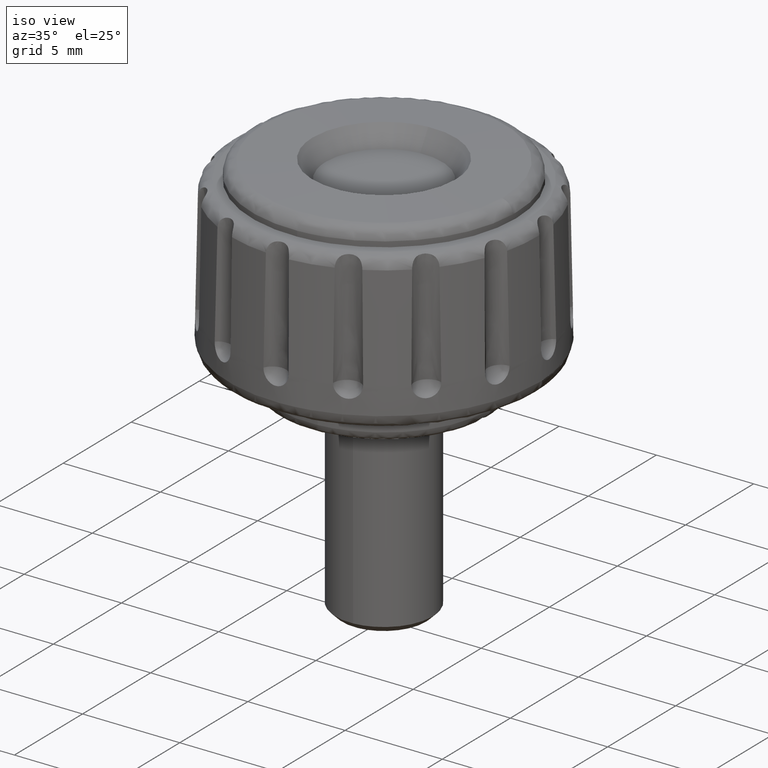
[diagram: clean part render]
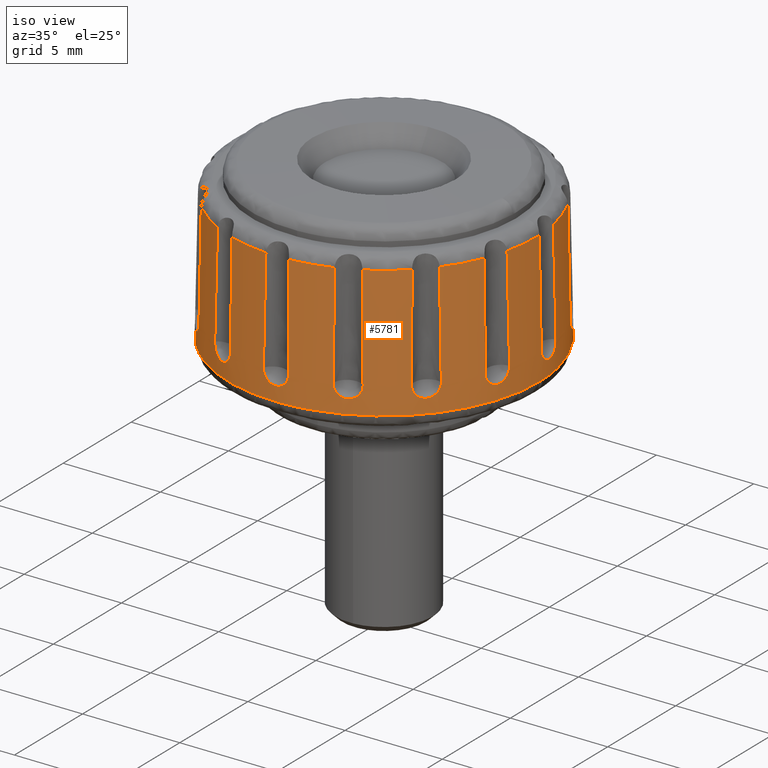
[diagram: same view with one face highlighted and labeled with its STEP entity id]
A machine part, iso view. The second image highlights one B-rep face of the part: STEP entity #5781.
In plain terms, the highlighted face is a freeform B-spline surface patch.
Its self-contained STEP definition (entity closure, byte-faithful):
#2534=CARTESIAN_POINT('',(5.949083221193707,5.326897424263119,2.714257020742696));
#2535=VERTEX_POINT('',#2534);
#2551=CARTESIAN_POINT('',(7.985450985185420,0.0,2.714256727239940));
#2552=VERTEX_POINT('',#2551);
#2553=CARTESIAN_POINT('',(5.949083221193707,5.326897424263119,2.714257020742696));
#2554=CARTESIAN_POINT('',(7.985450982958291,3.052680315324331,2.714256873991323));
#2555=CARTESIAN_POINT('',(7.985450985185420,0.0,2.714256727239940));
#2563=(BOUNDED_CURVE()B_SPLINE_CURVE(2,(#2553,#2554,#2555),.UNSPECIFIED.,.F.,.U.)B_SPLINE_CURVE_WITH_KNOTS((3,3),(0.383319386218338,0.500000000000000),.UNSPECIFIED.)CURVE()GEOMETRIC_REPRESENTATION_ITEM()RATIONAL_B_SPLINE_CURVE((0.854202087561151,0.863300157825439,1.0))REPRESENTATION_ITEM(''));
#2564=EDGE_CURVE('',#2535,#2552,#2563,.T.);
#2566=CARTESIAN_POINT('',(0.200675145421764,-7.982929094186465,2.714256727239831));
#2567=VERTEX_POINT('',#2566);
#2568=CARTESIAN_POINT('',(7.985450985185420,0.0,2.714256727239940));
#2569=CARTESIAN_POINT('',(7.985450985185419,-7.787235132071972,2.714256727239885));
#2570=CARTESIAN_POINT('',(0.200675145421763,-7.982929094186465,2.714256727239831));
#2578=(BOUNDED_CURVE()B_SPLINE_CURVE(2,(#2568,#2569,#2570),.UNSPECIFIED.,.F.,.U.)B_SPLINE_CURVE_WITH_KNOTS((3,3),(0.500000000000000,0.745579891769677),.UNSPECIFIED.)CURVE()GEOMETRIC_REPRESENTATION_ITEM()RATIONAL_B_SPLINE_CURVE((1.0,0.712285260094880,0.989826157681281))REPRESENTATION_ITEM(''));
#2579=EDGE_CURVE('',#2552,#2567,#2578,.T.);
#2626=CARTESIAN_POINT('',(-5.949083220944342,-5.326897424541610,2.714257020742678));
#2627=VERTEX_POINT('',#2626);
#2628=CARTESIAN_POINT('',(0.200675145421763,-7.982929094186465,2.714256727239831));
#2629=CARTESIAN_POINT('',(0.100353419114055,-7.985450985131180,2.714256731231269));
#2630=CARTESIAN_POINT('',(1.218334E-010,-7.985450985076326,2.714256735267792));
#2631=CARTESIAN_POINT('',(-3.568574904758616,-7.985450983125774,2.714256878806846));
#2632=CARTESIAN_POINT('',(-5.949083220944342,-5.326897424541610,2.714257020742678));
#2640=(BOUNDED_CURVE()B_SPLINE_CURVE(2,(#2628,#2629,#2630,#2631,#2632),.UNSPECIFIED.,.F.,.U.)B_SPLINE_CURVE_WITH_KNOTS((3,2,3),(0.745579891769677,0.750000000000000,0.883319386211269),.UNSPECIFIED.)CURVE()GEOMETRIC_REPRESENTATION_ITEM()RATIONAL_B_SPLINE_CURVE((0.989826157681281,0.994821521091667,1.0,0.843806623369390,0.854202087560048))REPRESENTATION_ITEM(''));
#2641=EDGE_CURVE('',#2567,#2627,#2640,.T.);
#2699=CARTESIAN_POINT('',(2.635446826464195,-7.508115825209311,4.099997999999999));
#2700=VERTEX_POINT('',#2699);
#2701=CARTESIAN_POINT('',(3.816159291570730,-6.982428766642530,4.099998000000050));
#2702=VERTEX_POINT('',#2701);
#2703=CARTESIAN_POINT('',(2.635446826464195,-7.508115825209311,4.099997999999999));
#2704=CARTESIAN_POINT('',(2.635469204785372,-7.509034536623016,4.057080522890732));
#2705=CARTESIAN_POINT('',(2.639371661005294,-7.508585397441424,4.014590445424951));
#2706=CARTESIAN_POINT('',(2.654873826394613,-7.504936122108291,3.930458736214820));
#2707=CARTESIAN_POINT('',(2.666644107312111,-7.501679841034684,3.888587035964628));
#2708=CARTESIAN_POINT('',(2.697055982479380,-7.492517876056769,3.809228933658157));
#2709=CARTESIAN_POINT('',(2.715729833691527,-7.486611176489309,3.771302731087238));
#2710=CARTESIAN_POINT('',(2.749045614769189,-7.475590768231121,3.717113543658334));
#2711=CARTESIAN_POINT('',(2.761070095152163,-7.471543560320813,3.699487256844192));
#2712=CARTESIAN_POINT('',(2.786374755852450,-7.462873231734655,3.665932262034256));
#2713=CARTESIAN_POINT('',(2.799713510803542,-7.458231094141110,3.649899435294611));
#2714=CARTESIAN_POINT('',(2.841748066763638,-7.443361747456553,3.604003944824571));
#2715=CARTESIAN_POINT('',(2.872600347071503,-7.432142351161842,3.576206609757151));
#2716=CARTESIAN_POINT('',(2.939230350303105,-7.407116713903426,3.527290884882228));
#2717=CARTESIAN_POINT('',(2.974172250115673,-7.393625789797532,3.506736951675712));
#2718=CARTESIAN_POINT('',(3.028915085039217,-7.371843638561319,3.481607805134038));
#2719=CARTESIAN_POINT('',(3.047554066064440,-7.364323871120155,3.474188698001269));
#2720=CARTESIAN_POINT('',(3.085633503096290,-7.348734213679780,3.461325843405060));
#2721=CARTESIAN_POINT('',(3.105028406992881,-7.340681347689745,3.455912879122808));
#2722=CARTESIAN_POINT('',(3.163084432209924,-7.316229438180486,3.443011547246521));
#2723=CARTESIAN_POINT('',(3.202042254351257,-7.299364905331661,3.438674175342452));
#2724=CARTESIAN_POINT('',(3.260849373293772,-7.273191109709329,3.438593961547182));
#2725=CARTESIAN_POINT('',(3.280626945854864,-7.264267720372010,3.439663497825638));
#2726=CARTESIAN_POINT('',(3.319586081178909,-7.246450869364003,3.443964546882722));
#2727=CARTESIAN_POINT('',(3.338791633435571,-7.237548403816599,3.447180951200025));
#2728=CARTESIAN_POINT('',(3.395611905354189,-7.210868487681660,3.459946481469529));
#2729=CARTESIAN_POINT('',(3.432475790924834,-7.193096794549875,3.472599014986132));
#2730=CARTESIAN_POINT('',(3.503904984023584,-7.157807397484656,3.506398496996825));
#2731=CARTESIAN_POINT('',(3.537339067406135,-7.140851212765496,3.526999270254298));
#2732=CARTESIAN_POINT('',(3.584277691715113,-7.116515344856514,3.563206672758573));
#2733=CARTESIAN_POINT('',(3.599384425981298,-7.108587957942536,3.576166963906943));
#2734=CARTESIAN_POINT('',(3.628506407134470,-7.093132361500451,3.603909145982819));
#2735=CARTESIAN_POINT('',(3.642499340500280,-7.085614884517738,3.618689995175958));
#2736=CARTESIAN_POINT('',(3.681943922812542,-7.064186969989910,3.664789073698628));
#2737=CARTESIAN_POINT('',(3.705216834929174,-7.051215666240050,3.698146026046824));
#2738=CARTESIAN_POINT('',(3.735693772453959,-7.033843284765025,3.752090017717633));
#2739=CARTESIAN_POINT('',(3.745153195034289,-7.028375804234963,3.770834476925930));
#2740=CARTESIAN_POINT('',(3.762271829458179,-7.018343300427782,3.809074247952706));
#2741=CARTESIAN_POINT('',(3.769937219581380,-7.013775858568995,3.828549823490135));
#2742=CARTESIAN_POINT('',(3.790340611160303,-7.001406711969032,3.888014083658847));
#2743=CARTESIAN_POINT('',(3.800511327996839,-6.994926759610383,3.929030414556355));
#2744=CARTESIAN_POINT('',(3.813835865622512,-6.985701203603237,4.013894598083278));
#2745=CARTESIAN_POINT('',(3.816830332266100,-6.983063235278364,4.056869773832961));
#2746=CARTESIAN_POINT('',(3.816159291570730,-6.982428766642530,4.099998000000050));
#2747=B_SPLINE_CURVE_WITH_KNOTS('',3,(#2703,#2704,#2705,#2706,#2707,#2708,#2709,#2710,#2711,#2712,#2713,#2714,#2715,#2716,#2717,#2718,#2719,#2720,#2721,#2722,#2723,#2724,#2725,#2726,#2727,#2728,#2729,#2730,#2731,#2732,#2733,#2734,#2735,#2736,#2737,#2738,#2739,#2740,#2741,#2742,#2743,#2744,#2745,#2746),.UNSPECIFIED.,.F.,.U.,(4,2,2,2,2,2,2,2,2,2,2,2,2,2,2,2,2,2,2,2,2,4),(0.0,0.062500000000002,0.125000000000004,0.187500000000005,0.218750000000006,0.250000000000007,0.312500000000008,0.375000000000008,0.406250000000009,0.437500000000009,0.500000000000008,0.531250000000008,0.562500000000007,0.625000000000007,0.687500000000006,0.718750000000006,0.750000000000005,0.812500000000004,0.843750000000003,0.875000000000002,0.937500000000001,1.0),.UNSPECIFIED.);
#2748=EDGE_CURVE('',#2700,#2702,#2747,.T.);
#2793=CARTESIAN_POINT('',(5.461426303744900,-5.787072312373681,4.099997999999999));
#2794=VERTEX_POINT('',#2793);
#2795=CARTESIAN_POINT('',(6.326244623515130,-4.826594263383310,4.099998000000050));
#2796=VERTEX_POINT('',#2795);
#2797=CARTESIAN_POINT('',(5.461426303744902,-5.787072312373676,4.099997999999999));
#2798=CARTESIAN_POINT('',(5.461823363744259,-5.787908693714222,4.056760067608728));
#2799=CARTESIAN_POINT('',(5.465264615583961,-5.785861599666244,4.014052860863724));
#2800=CARTESIAN_POINT('',(5.474770864828233,-5.778628254379415,3.951159285791404));
#2801=CARTESIAN_POINT('',(5.478668852296179,-5.775518301707478,3.930367780921924));
#2802=CARTESIAN_POINT('',(5.487945960132745,-5.767863222465794,3.889137815710257));
#2803=CARTESIAN_POINT('',(5.493360226856130,-5.763287280986274,3.868599908351802));
#2804=CARTESIAN_POINT('',(5.511535589423874,-5.747615283142141,3.808713776341075));
#2805=CARTESIAN_POINT('',(5.526236706892994,-5.734578718620412,3.770821696859260));
#2806=CARTESIAN_POINT('',(5.560639420120734,-5.703267711183637,3.699054584695797));
#2807=CARTESIAN_POINT('',(5.580579323445515,-5.684763257813936,3.664925579920682));
#2808=CARTESIAN_POINT('',(5.623873924982521,-5.643699871642854,3.603593018152484));
#2809=CARTESIAN_POINT('',(5.647325680072528,-5.621060543949244,3.576057920839529));
#2810=CARTESIAN_POINT('',(5.685163215446878,-5.583765680710402,3.539551133938706));
#2811=CARTESIAN_POINT('',(5.698285127071436,-5.570710006554595,3.528148271183182));
#2812=CARTESIAN_POINT('',(5.724861286730623,-5.544000477866775,3.507467085898553));
#2813=CARTESIAN_POINT('',(5.738366899411908,-5.530297110997066,3.498128388170803));
#2814=CARTESIAN_POINT('',(5.779503449248843,-5.488139541924105,3.473063806174414));
#2815=CARTESIAN_POINT('',(5.807828333099916,-5.458560643230996,3.460234867853013));
#2816=CARTESIAN_POINT('',(5.865782163245106,-5.396756395953675,3.442910553467004));
#2817=CARTESIAN_POINT('',(5.894566405552390,-5.365434051160687,3.438643393171920));
#2818=CARTESIAN_POINT('',(5.937441464166183,-5.317821675629904,3.438608749139094));
#2819=CARTESIAN_POINT('',(5.951683036986340,-5.301845720995499,3.439666236128923));
#2820=CARTESIAN_POINT('',(5.980065060277786,-5.269679345964404,3.443978891230735));
#2821=CARTESIAN_POINT('',(5.994170494595632,-5.253526396888976,3.447243949883551));
#2822=CARTESIAN_POINT('',(6.035387341074036,-5.205849121927828,3.460110192109809));
#2823=CARTESIAN_POINT('',(6.061728254775853,-5.174736218630510,3.472790713112961));
#2824=CARTESIAN_POINT('',(6.099601056441950,-5.129129294350517,3.497960311967899));
#2825=CARTESIAN_POINT('',(6.112014505753459,-5.114026300320539,3.507444842507282));
#2826=CARTESIAN_POINT('',(6.135834846811392,-5.084760846939729,3.528155276953965));
#2827=CARTESIAN_POINT('',(6.147271397515826,-5.070564512355937,3.539385875450693));
#2828=CARTESIAN_POINT('',(6.180223760019885,-5.029270983900132,3.575634646880532));
#2829=CARTESIAN_POINT('',(6.200424377422475,-5.003416796709526,3.603235231418193));
#2830=CARTESIAN_POINT('',(6.237139265549170,-4.955543379590445,3.665240704626206));
#2831=CARTESIAN_POINT('',(6.253114982620189,-4.934231220740745,3.698711787646405));
#2832=CARTESIAN_POINT('',(6.273777343364544,-4.906114122799825,3.752459583466863));
#2833=CARTESIAN_POINT('',(6.280110138465395,-4.897388221899288,3.770970159004613));
#2834=CARTESIAN_POINT('',(6.291660167296292,-4.881270466562141,3.809206307257374));
#2835=CARTESIAN_POINT('',(6.296869644065130,-4.873888000845538,3.828941903851455));
#2836=CARTESIAN_POINT('',(6.310510196471549,-4.854237235953484,3.888695731653190));
#2837=CARTESIAN_POINT('',(6.317108993020401,-4.844255566485788,3.929669794755842));
#2838=CARTESIAN_POINT('',(6.325438810372567,-4.830547878463682,4.013879288442274));
#2839=CARTESIAN_POINT('',(6.327107416336532,-4.826898022108449,4.057280465685442));
#2840=CARTESIAN_POINT('',(6.326244623515128,-4.826594263383304,4.099998000000050));
#2841=B_SPLINE_CURVE_WITH_KNOTS('',3,(#2797,#2798,#2799,#2800,#2801,#2802,#2803,#2804,#2805,#2806,#2807,#2808,#2809,#2810,#2811,#2812,#2813,#2814,#2815,#2816,#2817,#2818,#2819,#2820,#2821,#2822,#2823,#2824,#2825,#2826,#2827,#2828,#2829,#2830,#2831,#2832,#2833,#2834,#2835,#2836,#2837,#2838,#2839,#2840),.UNSPECIFIED.,.F.,.U.,(4,2,2,2,2,2,2,2,2,2,2,2,2,2,2,2,2,2,2,2,2,4),(0.0,0.062499999999999,0.093749999999998,0.124999999999998,0.187499999999998,0.249999999999997,0.312499999999997,0.343749999999997,0.374999999999996,0.437499999999996,0.499999999999995,0.531249999999996,0.562499999999996,0.624999999999996,0.656249999999996,0.687499999999997,0.749999999999997,0.812499999999997,0.843749999999997,0.874999999999997,0.937499999999999,1.0),.UNSPECIFIED.);
#2842=EDGE_CURVE('',#2794,#2796,#2841,.T.);
#2888=CARTESIAN_POINT('',(7.343075557607750,-3.065391422827160,4.099997999999999));
#2889=VERTEX_POINT('',#2888);
#2890=CARTESIAN_POINT('',(7.742464787925609,-1.836197763752780,4.099998000000050));
#2891=VERTEX_POINT('',#2890);
#2892=CARTESIAN_POINT('',(7.343075557607750,-3.065391422827160,4.099997999999999));
#2893=CARTESIAN_POINT('',(7.343774051064387,-3.065990202327985,4.057032309627476));
#2894=CARTESIAN_POINT('',(7.346055340983755,-3.062781361061254,4.014524822014907));
#2895=CARTESIAN_POINT('',(7.353717074019839,-3.048816228277404,3.930415743569673));
#2896=CARTESIAN_POINT('',(7.359176199790496,-3.037883881095121,3.888522311941655));
#2897=CARTESIAN_POINT('',(7.372732062706935,-3.009119024504927,3.809106601493990));
#2898=CARTESIAN_POINT('',(7.380842858577990,-2.991276240807404,3.771180473842873));
#2899=CARTESIAN_POINT('',(7.394941767481811,-2.959150885335359,3.717025275432395));
#2900=CARTESIAN_POINT('',(7.399984968025009,-2.947495044933790,3.699386002914117));
#2901=CARTESIAN_POINT('',(7.410486788264436,-2.922856328567785,3.665803037687547));
#2902=CARTESIAN_POINT('',(7.415967610153755,-2.909824004588751,3.649763160490152));
#2903=CARTESIAN_POINT('',(7.433054767689823,-2.868607677252571,3.603862903808624));
#2904=CARTESIAN_POINT('',(7.445338495493496,-2.838227803079426,3.576126831644287));
#2905=CARTESIAN_POINT('',(7.471362116132968,-2.771866737671470,3.527166999261228));
#2906=CARTESIAN_POINT('',(7.484727728864818,-2.736840019674786,3.506617238533497));
#2907=CARTESIAN_POINT('',(7.505172973230541,-2.681569582088537,3.481511159926132));
#2908=CARTESIAN_POINT('',(7.512055167049487,-2.662687852555735,3.474102621909410));
#2909=CARTESIAN_POINT('',(7.525942155206211,-2.623974717295993,3.461263134142078));
#2910=CARTESIAN_POINT('',(7.532945513889982,-2.604142348897462,3.455849591268595));
#2911=CARTESIAN_POINT('',(7.553639227048391,-2.544576466609831,3.442964966242017));
#2912=CARTESIAN_POINT('',(7.567176678769073,-2.504325419405419,3.438651938201660));
#2913=CARTESIAN_POINT('',(7.587066064037875,-2.443127576163700,3.438604595794139));
#2914=CARTESIAN_POINT('',(7.593663509808111,-2.422471417767895,3.439683099518610));
#2915=CARTESIAN_POINT('',(7.606503114359536,-2.381553733557384,3.444011053208219));
#2916=CARTESIAN_POINT('',(7.612741497634643,-2.361309746488880,3.447242447161838));
#2917=CARTESIAN_POINT('',(7.630937906435066,-2.301208020665928,3.460051770827560));
#2918=CARTESIAN_POINT('',(7.642379911380481,-2.261973502800819,3.472713793449819));
#2919=CARTESIAN_POINT('',(7.663949674266013,-2.185263376835289,3.506573426459607));
#2920=CARTESIAN_POINT('',(7.673729278343791,-2.149029241335930,3.527230519390086));
#2921=CARTESIAN_POINT('',(7.687043815102586,-2.097881276098931,3.563479376338242));
#2922=CARTESIAN_POINT('',(7.691256809723397,-2.081361881671751,3.576449887126270));
#2923=CARTESIAN_POINT('',(7.699247066347929,-2.049410747134720,3.604202067674293));
#2924=CARTESIAN_POINT('',(7.703024606191809,-2.033973418065089,3.619009890796821));
#2925=CARTESIAN_POINT('',(7.713492075255106,-1.990316899268670,3.665181712947601));
#2926=CARTESIAN_POINT('',(7.719418127843456,-1.964362001182367,3.698572121404416));
#2927=CARTESIAN_POINT('',(7.726887081606958,-1.930137765455599,3.752531198797121));
#2928=CARTESIAN_POINT('',(7.729148019826396,-1.919470938520811,3.771269083224143));
#2929=CARTESIAN_POINT('',(7.733143165544623,-1.900044552951217,3.809565536247408));
#2930=CARTESIAN_POINT('',(7.734875039565798,-1.891301009380755,3.829064104371560));
#2931=CARTESIAN_POINT('',(7.739324640490350,-1.867899245347199,3.888580072039377));
#2932=CARTESIAN_POINT('',(7.741304911052178,-1.856043369733005,3.929608070943730));
#2933=CARTESIAN_POINT('',(7.743346307763678,-1.840047784808194,4.014439731408531));
#2934=CARTESIAN_POINT('',(7.743375652332767,-1.836124403047360,4.057321970198048));
#2935=CARTESIAN_POINT('',(7.742464787925610,-1.836197763752782,4.099998000000049));
#2936=B_SPLINE_CURVE_WITH_KNOTS('',3,(#2892,#2893,#2894,#2895,#2896,#2897,#2898,#2899,#2900,#2901,#2902,#2903,#2904,#2905,#2906,#2907,#2908,#2909,#2910,#2911,#2912,#2913,#2914,#2915,#2916,#2917,#2918,#2919,#2920,#2921,#2922,#2923,#2924,#2925,#2926,#2927,#2928,#2929,#2930,#2931,#2932,#2933,#2934,#2935),.UNSPECIFIED.,.F.,.U.,(4,2,2,2,2,2,2,2,2,2,2,2,2,2,2,2,2,2,2,2,2,4),(0.0,0.062500000000001,0.125000000000002,0.187500000000002,0.218750000000003,0.250000000000003,0.312500000000003,0.375000000000004,0.406250000000004,0.437500000000004,0.500000000000004,0.531250000000004,0.562500000000003,0.625000000000003,0.687500000000002,0.718750000000001,0.750000000000000,0.812500000000000,0.843749999999999,0.874999999999999,0.937500000000000,1.0),.UNSPECIFIED.);
#2937=EDGE_CURVE('',#2889,#2891,#2936,.T.);
#2982=CARTESIAN_POINT('',(7.955040337813040,0.186323491932995,4.099997999999999));
#2983=VERTEX_POINT('',#2982);
#2984=CARTESIAN_POINT('',(7.819942452419321,1.471694010563594,4.099998000000050));
#2985=VERTEX_POINT('',#2984);
#2986=CARTESIAN_POINT('',(7.955040337813040,0.186323491932995,4.099997999999999));
#2987=CARTESIAN_POINT('',(7.955480050225948,0.186192369157514,4.078569401331801));
#2988=CARTESIAN_POINT('',(7.955899953258136,0.187104843994215,4.056923299658730));
#2989=CARTESIAN_POINT('',(7.956681593833133,0.191018753253304,4.013999577523050));
#2990=CARTESIAN_POINT('',(7.957042514879217,0.194001530738230,3.992782755582650));
#2991=CARTESIAN_POINT('',(7.958027779769062,0.205945798087297,3.929847789153798));
#2992=CARTESIAN_POINT('',(7.958557982255042,0.217874510379923,3.888838320644232));
#2993=CARTESIAN_POINT('',(7.959075263125986,0.241913580123325,3.828790838573396));
#2994=CARTESIAN_POINT('',(7.959199165084889,0.250940268840453,3.809100469025049));
#2995=CARTESIAN_POINT('',(7.959328078604516,0.270667670394329,3.771060456931220));
#2996=CARTESIAN_POINT('',(7.959340048467523,0.292148380711916,3.734153859187824));
#2997=CARTESIAN_POINT('',(7.959077739255141,0.317098480330631,3.699490195521245));
#2998=CARTESIAN_POINT('',(7.958651902364016,0.343815129259130,3.665968688062106));
#2999=CARTESIAN_POINT('',(7.958354868230164,0.358142529802107,3.649694363842073));
#3000=CARTESIAN_POINT('',(7.957186542042050,0.403208888610852,3.603359484321911));
#3001=CARTESIAN_POINT('',(7.956048036417516,0.435844847412920,3.575852276115344));
#3002=CARTESIAN_POINT('',(7.952869413911278,0.506195652981368,3.527477204645511));
#3003=CARTESIAN_POINT('',(7.950796181929621,0.544373966156754,3.506461555158887));
#3004=CARTESIAN_POINT('',(7.945704008826757,0.623035834779222,3.472944682536673));
#3005=CARTESIAN_POINT('',(7.942688156974568,0.663652535730204,3.460232361136260));
#3006=CARTESIAN_POINT('',(7.937364976725857,0.726523818135247,3.447308338880144));
#3007=CARTESIAN_POINT('',(7.935445117892899,0.747924916267283,3.444026767271468));
#3008=CARTESIAN_POINT('',(7.931402342232448,0.790533830681538,3.439697283426093));
#3009=CARTESIAN_POINT('',(7.929275749257858,0.811799769915510,3.438624810834278));
#3010=CARTESIAN_POINT('',(7.922583636607716,0.875484208724596,3.438611034160187));
#3011=CARTESIAN_POINT('',(7.917693203568592,0.917894634232877,3.442862507973511));
#3012=CARTESIAN_POINT('',(7.907137973097854,1.001975279754621,3.460140926531135));
#3013=CARTESIAN_POINT('',(7.901630415598019,1.042416631538376,3.472893168233958));
#3014=CARTESIAN_POINT('',(7.893121547099399,1.100787830717950,3.497944605781129));
#3015=CARTESIAN_POINT('',(7.890244049163557,1.119860228078263,3.507289802106882));
#3016=CARTESIAN_POINT('',(7.884424571156543,1.157219563934851,3.528018608339012));
#3017=CARTESIAN_POINT('',(7.881491121646757,1.175444909399400,3.539383916800174));
#3018=CARTESIAN_POINT('',(7.872820994720348,1.227756154372080,3.575776126111389));
#3019=CARTESIAN_POINT('',(7.867150212100460,1.259904128584390,3.603291802800192));
#3020=CARTESIAN_POINT('',(7.858953210824688,1.304077218608965,3.649428704806261));
#3021=CARTESIAN_POINT('',(7.856259220619603,1.318189189838992,3.665718660679058));
#3022=CARTESIAN_POINT('',(7.851099225186173,1.344527234734024,3.699363751044427));
#3023=CARTESIAN_POINT('',(7.848627275899841,1.356789960203690,3.716738538611799));
#3024=CARTESIAN_POINT('',(7.841561615154934,1.390937904747692,3.770476110029368));
#3025=CARTESIAN_POINT('',(7.837315296226175,1.410208538910276,3.808436507660133));
#3026=CARTESIAN_POINT('',(7.829946293981126,1.441554119432126,3.888775020766468));
#3027=CARTESIAN_POINT('',(7.826943469644725,1.453124388095083,3.929863816206467));
#3028=CARTESIAN_POINT('',(7.823497853967528,1.464597988069235,3.992771119417184));
#3029=CARTESIAN_POINT('',(7.822526206175654,1.467435785709824,4.013956745750495));
#3030=CARTESIAN_POINT('',(7.820950782332352,1.471098504416069,4.056770112926203));
#3031=CARTESIAN_POINT('',(7.820347362157513,1.471914817089906,4.078459394121838));
#3032=CARTESIAN_POINT('',(7.819942452419321,1.471694010563594,4.099998000000050));
#3033=B_SPLINE_CURVE_WITH_KNOTS('',3,(#2986,#2987,#2988,#2989,#2990,#2991,#2992,#2993,#2994,#2995,#2996,#2997,#2998,#2999,#3000,#3001,#3002,#3003,#3004,#3005,#3006,#3007,#3008,#3009,#3010,#3011,#3012,#3013,#3014,#3015,#3016,#3017,#3018,#3019,#3020,#3021,#3022,#3023,#3024,#3025,#3026,#3027,#3028,#3029,#3030,#3031,#3032),.UNSPECIFIED.,.F.,.U.,(4,2,2,2,2,1,2,2,2,2,2,2,2,2,2,2,2,2,2,2,2,2,2,4),(0.0,0.031250000000001,0.062500000000002,0.125000000000003,0.156250000000003,0.187500000000003,0.218750000000003,0.250000000000003,0.312500000000003,0.375000000000003,0.437500000000003,0.468750000000003,0.500000000000002,0.562500000000002,0.625000000000001,0.656250000000001,0.687500000000000,0.749999999999999,0.781249999999999,0.812499999999999,0.874999999999999,0.937499999999999,0.968749999999999,1.0),.UNSPECIFIED.);
#3034=EDGE_CURVE('',#2983,#2985,#3033,.T.);
#3079=CARTESIAN_POINT('',(7.191506374337780,3.405821382242150,4.099997999999999));
#3080=VERTEX_POINT('',#3079);
#3081=CARTESIAN_POINT('',(6.545281024942820,4.525116520533169,4.099998000000050));
#3082=VERTEX_POINT('',#3081);
#3083=CARTESIAN_POINT('',(7.191506374337775,3.405821382242153,4.099997999999999));
#3084=CARTESIAN_POINT('',(7.192424518549398,3.405940552693893,4.056760067608729));
#3085=CARTESIAN_POINT('',(7.191541021715993,3.409845964530168,4.014052860863727));
#3086=CARTESIAN_POINT('',(7.187599294115587,3.421122171439269,3.951159285791404));
#3087=CARTESIAN_POINT('',(7.185846097733024,3.425790406048427,3.930367780921925));
#3088=CARTESIAN_POINT('',(7.181432468717614,3.436979009487732,3.889137815710258));
#3089=CARTESIAN_POINT('',(7.178753590184937,3.443542326818404,3.868599908351802));
#3090=CARTESIAN_POINT('',(7.169465130424271,3.465671037494130,3.808713776341075));
#3091=CARTESIAN_POINT('',(7.161609515920036,3.483681151045435,3.770821696859260));
#3092=CARTESIAN_POINT('',(7.142462001305504,3.526075709047877,3.699054584695795));
#3093=CARTESIAN_POINT('',(7.131024989341319,3.550757874602057,3.664925579920681));
#3094=CARTESIAN_POINT('',(7.105350155981799,3.604622771687679,3.603593018152484));
#3095=CARTESIAN_POINT('',(7.091065866724981,3.633922653183135,3.576057920839530));
#3096=CARTESIAN_POINT('',(7.067288785473279,3.681433034305151,3.539551133938707));
#3097=CARTESIAN_POINT('',(7.058926995183448,3.697947139049102,3.528148271183182));
#3098=CARTESIAN_POINT('',(7.041737208857636,3.731476267147354,3.507467085898554));
#3099=CARTESIAN_POINT('',(7.032877996338977,3.748555441337341,3.498128388170803));
#3100=CARTESIAN_POINT('',(7.005495658550541,3.800706030402740,3.473063806174416));
#3101=CARTESIAN_POINT('',(6.986117324677300,3.836784978133673,3.460234867853014));
#3102=CARTESIAN_POINT('',(6.945246710973472,3.911000908670760,3.442910553467006));
#3103=CARTESIAN_POINT('',(6.924352210895614,3.948055486728428,3.438643393171920));
#3104=CARTESIAN_POINT('',(6.892319272637254,4.003545123791184,3.438608749139092));
#3105=CARTESIAN_POINT('',(6.881526124906226,4.022026505907484,3.439666236128922));
#3106=CARTESIAN_POINT('',(6.859704611859110,4.058959370636500,3.443978891230734));
#3107=CARTESIAN_POINT('',(6.848701063300795,4.077365971633241,3.447243949883550));
#3108=CARTESIAN_POINT('',(6.816093986286170,4.131298610266144,3.460110192109808));
#3109=CARTESIAN_POINT('',(6.794643646845620,4.165964723750640,3.472790713112961));
#3110=CARTESIAN_POINT('',(6.762972223660368,4.216077213229226,3.497960311967900));
#3111=CARTESIAN_POINT('',(6.752444389568661,4.232550186907845,3.507444842507281));
#3112=CARTESIAN_POINT('',(6.731972179627216,4.264248199934118,3.528155276953966));
#3113=CARTESIAN_POINT('',(6.722004751638496,4.279511914649738,3.539385875450694));
#3114=CARTESIAN_POINT('',(6.692915112338344,4.323611875787097,3.575634646880534));
#3115=CARTESIAN_POINT('',(6.674568653211470,4.350813187818659,3.603235231418193));
#3116=CARTESIAN_POINT('',(6.640383852280774,4.400524820885200,3.665240704626206));
#3117=CARTESIAN_POINT('',(6.625051552802720,4.422304449979456,3.698711787646404));
#3118=CARTESIAN_POINT('',(6.604695624200612,4.450644183903664,3.752459583466862));
#3119=CARTESIAN_POINT('',(6.598353740596666,4.459363481620187,3.770970159004611));
#3120=CARTESIAN_POINT('',(6.586593999549490,4.475328872113567,3.809206307257373));
#3121=CARTESIAN_POINT('',(6.581182674276762,4.482564686307881,3.828941903851454));
#3122=CARTESIAN_POINT('',(6.566708848782234,4.501610042863979,3.888695731653190));
#3123=CARTESIAN_POINT('',(6.559254857267494,4.510970376819222,3.929669794755842));
#3124=CARTESIAN_POINT('',(6.548792126372590,4.523128412443970,4.013879288442270));
#3125=CARTESIAN_POINT('',(6.545836534302183,4.525843218659922,4.057280465685443));
#3126=CARTESIAN_POINT('',(6.545281024942814,4.525116520533171,4.099998000000051));
#3127=B_SPLINE_CURVE_WITH_KNOTS('',3,(#3083,#3084,#3085,#3086,#3087,#3088,#3089,#3090,#3091,#3092,#3093,#3094,#3095,#3096,#3097,#3098,#3099,#3100,#3101,#3102,#3103,#3104,#3105,#3106,#3107,#3108,#3109,#3110,#3111,#3112,#3113,#3114,#3115,#3116,#3117,#3118,#3119,#3120,#3121,#3122,#3123,#3124,#3125,#3126),.UNSPECIFIED.,.F.,.U.,(4,2,2,2,2,2,2,2,2,2,2,2,2,2,2,2,2,2,2,2,2,4),(0.0,0.062500000000001,0.093750000000001,0.125000000000000,0.187499999999999,0.249999999999999,0.312499999999998,0.343749999999997,0.374999999999997,0.437499999999994,0.499999999999992,0.531249999999992,0.562499999999991,0.624999999999991,0.656249999999992,0.687499999999992,0.749999999999994,0.812499999999996,0.843749999999997,0.874999999999997,0.937499999999999,1.0),.UNSPECIFIED.);
#3128=EDGE_CURVE('',#3080,#3082,#3127,.T.);
#3838=CARTESIAN_POINT('',(-5.938084165350783,-5.317049239392807,3.438997407666107));
#3839=VERTEX_POINT('',#3838);
#3865=CARTESIAN_POINT('',(-5.461426303744900,-5.787072312373681,4.099998000000050));
#3866=VERTEX_POINT('',#3865);
#3867=CARTESIAN_POINT('',(-5.938084165350783,-5.317049239392807,3.438997407666107));
#3868=CARTESIAN_POINT('',(-5.933272548608528,-5.322430421435111,3.438749665437532));
#3869=CARTESIAN_POINT('',(-5.928448388610048,-5.327807177125509,3.438624205782450));
#3870=CARTESIAN_POINT('',(-5.909321723950349,-5.349051810789461,3.438608749133153));
#3871=CARTESIAN_POINT('',(-5.894921936990504,-5.364885308772618,3.439666236123085));
#3872=CARTESIAN_POINT('',(-5.865898502010899,-5.396474154125615,3.443978891225116));
#3873=CARTESIAN_POINT('',(-5.851308459855868,-5.412190760344536,3.447243949878047));
#3874=CARTESIAN_POINT('',(-5.808200699625650,-5.458165448916104,3.460110192104658));
#3875=CARTESIAN_POINT('',(-5.780011611303245,-5.487614248310452,3.472790713108055));
#3876=CARTESIAN_POINT('',(-5.738613312291979,-5.530046800522665,3.497960311963387));
#3877=CARTESIAN_POINT('',(-5.724890612826614,-5.543970940419100,3.507444842502903));
#3878=CARTESIAN_POINT('',(-5.698275382312202,-5.570719864029910,3.528155276949855));
#3879=CARTESIAN_POINT('',(-5.685352261807579,-5.583577685153473,3.539385875446719));
#3880=CARTESIAN_POINT('',(-5.647729403443067,-5.620665880247616,3.575634646876971));
#3881=CARTESIAN_POINT('',(-5.624128387694776,-5.643458335015503,3.603235231414910));
#3882=CARTESIAN_POINT('',(-5.580354977009938,-5.684976229876421,3.665240704623487));
#3883=CARTESIAN_POINT('',(-5.560829485556905,-5.703092157516188,3.698711787643963));
#3884=CARTESIAN_POINT('',(-5.535026220844683,-5.726580364733059,3.752459583464830));
#3885=CARTESIAN_POINT('',(-5.527010078685057,-5.733790573133912,3.770970159002716));
#3886=CARTESIAN_POINT('',(-5.512187924867801,-5.746962093899869,3.809206307255747));
#3887=CARTESIAN_POINT('',(-5.505390439674549,-5.752914710408740,3.828941903849958));
#3888=CARTESIAN_POINT('',(-5.487273149717508,-5.768534602704922,3.888695731652076));
#3889=CARTESIAN_POINT('',(-5.478035922947075,-5.776140618930489,3.929669794754970));
#3890=CARTESIAN_POINT('',(-5.465274030090511,-5.785857648243767,4.013879288441862));
#3891=CARTESIAN_POINT('',(-5.461818584851823,-5.787898627289511,4.057280465685246));
#3892=CARTESIAN_POINT('',(-5.461426303744900,-5.787072312373681,4.099998000000050));
#3893=B_SPLINE_CURVE_WITH_KNOTS('',3,(#3867,#3868,#3869,#3870,#3871,#3872,#3873,#3874,#3875,#3876,#3877,#3878,#3879,#3880,#3881,#3882,#3883,#3884,#3885,#3886,#3887,#3888,#3889,#3890,#3891,#3892),.UNSPECIFIED.,.F.,.U.,(4,2,2,2,2,2,2,2,2,2,2,2,4),(0.489422857900818,0.500000000000001,0.531250000000001,0.562500000000001,0.625000000000002,0.656250000000001,0.687500000000001,0.750000000000001,0.812500000000002,0.843750000000002,0.875000000000001,0.937500000000001,1.0),.UNSPECIFIED.);
#3894=EDGE_CURVE('',#3839,#3866,#3893,.T.);
#3939=CARTESIAN_POINT('',(-3.816159291570725,-6.982428766642530,4.099997999999999));
#3940=VERTEX_POINT('',#3939);
#3941=CARTESIAN_POINT('',(-2.635446826464190,-7.508115825209311,4.099998000000050));
#3942=VERTEX_POINT('',#3941);
#3943=CARTESIAN_POINT('',(-3.816159291570725,-6.982428766642530,4.099997999999999));
#3944=CARTESIAN_POINT('',(-3.816829048500599,-6.983062021477384,4.056952282348239));
#3945=CARTESIAN_POINT('',(-3.813863150262335,-6.985673719511525,4.014429876504431));
#3946=CARTESIAN_POINT('',(-3.800783537763700,-6.994746687971505,3.930410771118553));
#3947=CARTESIAN_POINT('',(-3.790489214752715,-7.001314435043680,3.888525837021330));
#3948=CARTESIAN_POINT('',(-3.763264552523371,-7.017823195867915,3.809024938463764));
#3949=CARTESIAN_POINT('',(-3.746362541418588,-7.027756448286715,3.771118320440029));
#3950=CARTESIAN_POINT('',(-3.715943588497531,-7.045103848970043,3.717062880936666));
#3951=CARTESIAN_POINT('',(-3.704885109026741,-7.051334515811676,3.699426363346341));
#3952=CARTESIAN_POINT('',(-3.681436328690922,-7.064378104057386,3.665780770889057));
#3953=CARTESIAN_POINT('',(-3.669033291584191,-7.071199231756590,3.649725121351315));
#3954=CARTESIAN_POINT('',(-3.629811713336526,-7.092509922112035,3.603813245505755));
#3955=CARTESIAN_POINT('',(-3.601001353593606,-7.107838791176546,3.576189295005874));
#3956=CARTESIAN_POINT('',(-3.537701203593086,-7.140669304124014,3.527198100701714));
#3957=CARTESIAN_POINT('',(-3.504159783306625,-7.157675237473550,3.506587847820596));
#3958=CARTESIAN_POINT('',(-3.451353342615658,-7.183773429235890,3.481498375191109));
#3959=CARTESIAN_POINT('',(-3.433316273197168,-7.192580735890984,3.474100836404313));
#3960=CARTESIAN_POINT('',(-3.396343133958379,-7.210401722582906,3.461285360162815));
#3961=CARTESIAN_POINT('',(-3.377327435961532,-7.219451708526154,3.455859927879845));
#3962=CARTESIAN_POINT('',(-3.320157451907408,-7.246302452304125,3.442952737807429));
#3963=CARTESIAN_POINT('',(-3.281536352338144,-7.263974299142796,3.438651926711939));
#3964=CARTESIAN_POINT('',(-3.203270057743574,-7.298827637266684,3.438588827209131));
#3965=CARTESIAN_POINT('',(-3.163414778140087,-7.316086903387975,3.442970567958080));
#3966=CARTESIAN_POINT('',(-3.086206670345515,-7.348612008219333,3.460063413615090));
#3967=CARTESIAN_POINT('',(-3.048418172009493,-7.364077017187611,3.472725026461008));
#3968=CARTESIAN_POINT('',(-2.974558995351097,-7.393478115544172,3.506491041276576));
#3969=CARTESIAN_POINT('',(-2.939351325713106,-7.407067857883184,3.527249797062377));
#3970=CARTESIAN_POINT('',(-2.889895007381439,-7.425648303845597,3.563486553528795));
#3971=CARTESIAN_POINT('',(-2.873924792662043,-7.431558112148250,3.576443516667401));
#3972=CARTESIAN_POINT('',(-2.843039706233365,-7.442824316496198,3.604141212624224));
#3973=CARTESIAN_POINT('',(-2.828067057211881,-7.448200502494195,3.618956567502536));
#3974=CARTESIAN_POINT('',(-2.785673269273786,-7.463199244651928,3.665199640854978));
#3975=CARTESIAN_POINT('',(-2.760484001192742,-7.471803781260702,3.698600685913929));
#3976=CARTESIAN_POINT('',(-2.716198376361054,-7.486459453239683,3.770450239151324));
#3977=CARTESIAN_POINT('',(-2.697070274415308,-7.492513527016705,3.809193293408879));
#3978=CARTESIAN_POINT('',(-2.666636727849441,-7.501682107594221,3.888604638873706));
#3979=CARTESIAN_POINT('',(-2.655068814783209,-7.504885652200811,3.929606440006404));
#3980=CARTESIAN_POINT('',(-2.643314853635192,-7.507659389701984,3.993089565981647));
#3981=CARTESIAN_POINT('',(-2.640350813387798,-7.508237362632546,4.014583493397185));
#3982=CARTESIAN_POINT('',(-2.636434814421148,-7.508690824284848,4.057311199118691));
#3983=CARTESIAN_POINT('',(-2.635457951973875,-7.508572567714959,4.078661336726761));
#3984=CARTESIAN_POINT('',(-2.635446826464189,-7.508115825209314,4.099998000000050));
#3985=B_SPLINE_CURVE_WITH_KNOTS('',3,(#3943,#3944,#3945,#3946,#3947,#3948,#3949,#3950,#3951,#3952,#3953,#3954,#3955,#3956,#3957,#3958,#3959,#3960,#3961,#3962,#3963,#3964,#3965,#3966,#3967,#3968,#3969,#3970,#3971,#3972,#3973,#3974,#3975,#3976,#3977,#3978,#3979,#3980,#3981,#3982,#3983,#3984),.UNSPECIFIED.,.F.,.U.,(4,2,2,2,2,2,2,2,2,2,2,2,2,2,2,2,2,2,2,2,4),(0.0,0.062500000000000,0.125000000000001,0.187500000000001,0.218750000000000,0.250000000000000,0.312500000000001,0.375000000000001,0.406250000000000,0.437500000000000,0.500000000000000,0.562499999999999,0.624999999999999,0.687499999999998,0.718749999999999,0.749999999999999,0.812499999999999,0.874999999999999,0.937499999999999,0.968749999999999,1.0),.UNSPECIFIED.);
#3986=EDGE_CURVE('',#3940,#3942,#3985,.T.);
#4025=CARTESIAN_POINT('',(2.642453804198855,-7.390828693639440,9.412215999999900));
#4026=VERTEX_POINT('',#4025);
#4027=CARTESIAN_POINT('',(2.642453804198854,-7.390828693639435,9.412215999999900));
#4028=CARTESIAN_POINT('',(2.636608641624031,-7.431225644145270,7.641511708373158));
#4029=CARTESIAN_POINT('',(2.634523500140108,-7.470209932299387,5.870766568932623));
#4030=CARTESIAN_POINT('',(2.635446826464193,-7.508115825209318,4.099997999999999));
#4031=QUASI_UNIFORM_CURVE('',3,(#4027,#4028,#4029,#4030),.UNSPECIFIED.,.F.,.U.);
#4032=EDGE_CURVE('',#4026,#2700,#4031,.T.);
#4035=CARTESIAN_POINT('',(3.724309383389160,-6.909155556422830,9.412215999999900));
#4036=VERTEX_POINT('',#4035);
#4037=CARTESIAN_POINT('',(3.816159291570732,-6.982428766642525,4.099998000000049));
#4038=CARTESIAN_POINT('',(3.788607547319943,-6.956378606480446,5.870766696366895));
#4039=CARTESIAN_POINT('',(3.758241348740677,-6.931842592388329,7.641511528857084));
#4040=CARTESIAN_POINT('',(3.724309383389181,-6.909155556422826,9.412215999999901));
#4041=QUASI_UNIFORM_CURVE('',3,(#4037,#4038,#4039,#4040),.UNSPECIFIED.,.F.,.U.);
#4042=EDGE_CURVE('',#2702,#4036,#4041,.T.);
#4115=CARTESIAN_POINT('',(5.420122522255480,-5.677075191486190,9.412215999999900));
#4116=VERTEX_POINT('',#4115);
#4117=CARTESIAN_POINT('',(5.420122522255479,-5.677075191486185,9.412215999999900));
#4118=CARTESIAN_POINT('',(5.431213620575310,-5.716357083927320,7.641511708373158));
#4119=CARTESIAN_POINT('',(5.445165087540635,-5.752819106737452,5.870766568932623));
#4120=CARTESIAN_POINT('',(5.461426303744900,-5.787072312373685,4.099997999999999));
#4121=QUASI_UNIFORM_CURVE('',3,(#4117,#4118,#4119,#4120),.UNSPECIFIED.,.F.,.U.);
#4122=EDGE_CURVE('',#4116,#2794,#4121,.T.);
#4125=CARTESIAN_POINT('',(6.212532657558819,-4.797014578340810,9.412215999999900));
#4126=VERTEX_POINT('',#4125);
#4127=CARTESIAN_POINT('',(6.326244623515128,-4.826594263383303,4.099998000000049));
#4128=CARTESIAN_POINT('',(6.290479298008779,-4.814002561863823,5.870766696366895));
#4129=CARTESIAN_POINT('',(6.252758699224529,-4.803938843314417,7.641511528857082));
#4130=CARTESIAN_POINT('',(6.212532657558834,-4.797014578340789,9.412215999999900));
#4131=QUASI_UNIFORM_CURVE('',3,(#4127,#4128,#4129,#4130),.UNSPECIFIED.,.F.,.U.);
#4132=EDGE_CURVE('',#2796,#4126,#4131,.T.);
#4205=CARTESIAN_POINT('',(7.260602815946850,-2.981703814115975,9.412215999999900));
#4206=VERTEX_POINT('',#4205);
#4207=CARTESIAN_POINT('',(7.260602815946846,-2.981703814115973,9.412215999999900));
#4208=CARTESIAN_POINT('',(7.286712423502366,-3.013078452424546,7.641511708373157));
#4209=CARTESIAN_POINT('',(7.314288163533535,-3.040713594899742,5.870766568932622));
#4210=CARTESIAN_POINT('',(7.343075557607752,-3.065391422827168,4.099997999999999));
#4211=QUASI_UNIFORM_CURVE('',3,(#4207,#4208,#4209,#4210),.UNSPECIFIED.,.F.,.U.);
#4212=EDGE_CURVE('',#4206,#2889,#4211,.T.);
#4215=CARTESIAN_POINT('',(7.626552596149190,-1.855426200154325,9.412215999999900));
#4216=VERTEX_POINT('',#4215);
#4217=CARTESIAN_POINT('',(7.742464787925611,-1.836197763752782,4.099998000000050));
#4218=CARTESIAN_POINT('',(7.704670030861530,-1.839241740460635,5.870766696366895));
#4219=CARTESIAN_POINT('',(7.666117266082974,-1.845390425817147,7.641511528857082));
#4220=CARTESIAN_POINT('',(7.626552596149197,-1.855426200154308,9.412215999999900));
#4221=QUASI_UNIFORM_CURVE('',3,(#4217,#4218,#4219,#4220),.UNSPECIFIED.,.F.,.U.);
#4222=EDGE_CURVE('',#2891,#4216,#4221,.T.);
#4390=CARTESIAN_POINT('',(7.846542354548671,0.197246650876180,9.411476093503897));
#4391=VERTEX_POINT('',#4390);
#4392=CARTESIAN_POINT('',(7.846542354548671,0.197246650876180,9.411476093503897));
#4393=CARTESIAN_POINT('',(7.882861331763947,0.189867383102533,7.641018420824181));
#4394=CARTESIAN_POINT('',(7.918998788441025,0.186498869390676,5.870519920239410));
#4395=CARTESIAN_POINT('',(7.955040337813040,0.186323491932995,4.099997999999999));
#4396=B_SPLINE_CURVE_WITH_KNOTS('',3,(#4392,#4393,#4394,#4395),.UNSPECIFIED.,.F.,.U.,(4,4),(0.000203962569724,1.0),.UNSPECIFIED.);
#4397=EDGE_CURVE('',#4391,#2983,#4396,.T.);
#4400=CARTESIAN_POINT('',(7.721872305810130,1.406982224056692,9.412215999999900));
#4401=VERTEX_POINT('',#4400);
#4402=CARTESIAN_POINT('',(7.819942452419323,1.471694010563596,4.099998000000051));
#4403=CARTESIAN_POINT('',(7.786653320648480,1.453540686854858,5.870766696366897));
#4404=CARTESIAN_POINT('',(7.753934513146703,1.432242761149622,7.641511528857085));
#4405=CARTESIAN_POINT('',(7.721872305810135,1.406982224056716,9.412215999999901));
#4406=QUASI_UNIFORM_CURVE('',3,(#4402,#4403,#4404,#4405),.UNSPECIFIED.,.F.,.U.);
#4407=EDGE_CURVE('',#2985,#4401,#4406,.T.);
#4481=CARTESIAN_POINT('',(7.074129325331851,3.400530131395555,9.412215999999900));
#4482=VERTEX_POINT('',#4481);
#4483=CARTESIAN_POINT('',(7.074129325331841,3.400530131395556,9.412215999999900));
#4484=CARTESIAN_POINT('',(7.114915962977499,3.398939620389982,7.641511708373157));
#4485=CARTESIAN_POINT('',(7.153904647757123,3.400940869261613,5.870766568932622));
#4486=CARTESIAN_POINT('',(7.191506374337783,3.405821382242149,4.099997999999999));
#4487=QUASI_UNIFORM_CURVE('',3,(#4483,#4484,#4485,#4486),.UNSPECIFIED.,.F.,.U.);
#4488=EDGE_CURVE('',#4482,#3080,#4487,.T.);
#4491=CARTESIAN_POINT('',(6.482010142788901,4.426110639696080,9.412215999999900));
#4492=VERTEX_POINT('',#4491);
#4493=CARTESIAN_POINT('',(6.545281024942813,4.525116520533172,4.099998000000050));
#4494=CARTESIAN_POINT('',(6.522253511770654,4.494992724410557,5.870766696366896));
#4495=CARTESIAN_POINT('',(6.501026040603749,4.462228163196614,7.641511528857083));
#4496=CARTESIAN_POINT('',(6.482010142788893,4.426110639696100,9.412215999999900));
#4497=QUASI_UNIFORM_CURVE('',3,(#4493,#4494,#4495,#4496),.UNSPECIFIED.,.F.,.U.);
#4498=EDGE_CURVE('',#3082,#4492,#4497,.T.);
#5213=CARTESIAN_POINT('',(-5.420122522255470,-5.677075191486190,9.412215999999900));
#5214=VERTEX_POINT('',#5213);
#5215=CARTESIAN_POINT('',(-5.461426303744891,-5.787072312373685,4.099998000000051));
#5216=CARTESIAN_POINT('',(-5.445165086370380,-5.752819104272404,5.870766696366896));
#5217=CARTESIAN_POINT('',(-5.431213621699719,-5.716357087909792,7.641511528857083));
#5218=CARTESIAN_POINT('',(-5.420122522255459,-5.677075191486213,9.412215999999900));
#5219=QUASI_UNIFORM_CURVE('',3,(#5215,#5216,#5217,#5218),.UNSPECIFIED.,.F.,.U.);
#5220=EDGE_CURVE('',#3866,#5214,#5219,.T.);
#5293=CARTESIAN_POINT('',(-3.724309383389155,-6.909155556422840,9.412215999999900));
#5294=VERTEX_POINT('',#5293);
#5295=CARTESIAN_POINT('',(-3.724309383389155,-6.909155556422832,9.412215999999900));
#5296=CARTESIAN_POINT('',(-3.758241345300590,-6.931842590088297,7.641511708373159));
#5297=CARTESIAN_POINT('',(-3.788607549302721,-6.956378608355164,5.870766568932624));
#5298=CARTESIAN_POINT('',(-3.816159291570735,-6.982428766642530,4.099998000000000));
#5299=QUASI_UNIFORM_CURVE('',3,(#5295,#5296,#5297,#5298),.UNSPECIFIED.,.F.,.U.);
#5300=EDGE_CURVE('',#5294,#3940,#5299,.T.);
#5303=CARTESIAN_POINT('',(-2.642453804198845,-7.390828693639440,9.412215999999900));
#5304=VERTEX_POINT('',#5303);
#5305=CARTESIAN_POINT('',(-2.635446826464188,-7.508115825209314,4.099998000000050));
#5306=CARTESIAN_POINT('',(-2.634523500073656,-7.470209929571467,5.870766696366896));
#5307=CARTESIAN_POINT('',(-2.636608641031416,-7.431225648240778,7.641511528857082));
#5308=CARTESIAN_POINT('',(-2.642453804198827,-7.390828693639453,9.412215999999900));
#5309=QUASI_UNIFORM_CURVE('',3,(#5305,#5306,#5307,#5308),.UNSPECIFIED.,.F.,.U.);
#5310=EDGE_CURVE('',#3942,#5304,#5309,.T.);
#5387=CARTESIAN_POINT('',(-5.938084165350783,-5.317049239392807,3.438997407666107));
#5388=CARTESIAN_POINT('',(-5.949083220944342,-5.326897424541610,2.714257020742678));
#5389=QUASI_UNIFORM_CURVE('',1,(#5387,#5388),.UNSPECIFIED.,.F.,.U.);
#5390=EDGE_CURVE('',#3839,#2627,#5389,.T.);
#5536=CARTESIAN_POINT('',(5.847433537594814,5.235879273842516,9.412216435314992));
#5537=VERTEX_POINT('',#5536);
#5551=CARTESIAN_POINT('',(5.847433537594814,5.235879273842516,9.412216435314992));
#5552=CARTESIAN_POINT('',(5.949083221193707,5.326897424263119,2.714257020742696));
#5553=QUASI_UNIFORM_CURVE('',1,(#5551,#5552),.UNSPECIFIED.,.F.,.U.);
#5554=EDGE_CURVE('',#5537,#2535,#5553,.T.);
#5561=CARTESIAN_POINT('',(5.844892288592967,5.233603841174559,9.579664982749934));
#5562=CARTESIAN_POINT('',(7.514035539060549,3.369503536818034,9.579664982749934));
#5563=CARTESIAN_POINT('',(8.401126569317004,0.883436892115640,9.579664982749934));
#5564=CARTESIAN_POINT('',(8.252929139274556,-1.802373157297892,9.579664982749934));
#5565=CARTESIAN_POINT('',(7.097704145531083,-4.175749038125385,9.579664982749934));
#5566=CARTESIAN_POINT('',(3.369503536818034,-7.514035539060549,9.579664982749934));
#5567=CARTESIAN_POINT('',(0.883436892115640,-8.401126569317004,9.579664982749934));
#5568=CARTESIAN_POINT('',(-1.802373157297892,-8.252929139274556,9.579664982749934));
#5569=CARTESIAN_POINT('',(-4.175749038125385,-7.097704145531083,9.579664982749934));
#5570=CARTESIAN_POINT('',(-5.844892288592967,-5.233603841174559,9.579664982749934));
#5571=CARTESIAN_POINT('',(5.951687727101471,5.329230071667950,2.542621520852078));
#5572=CARTESIAN_POINT('',(7.651328868131569,3.431069702626210,2.542621520852078));
#5573=CARTESIAN_POINT('',(8.554628456372591,0.899578683209414,2.542621520852078));
#5574=CARTESIAN_POINT('',(8.403723224587054,-1.835305369250753,2.542621520852078));
#5575=CARTESIAN_POINT('',(7.227390440709689,-4.252046586071374,2.542621520852078));
#5576=CARTESIAN_POINT('',(3.431069702626210,-7.651328868131569,2.542621520852078));
#5577=CARTESIAN_POINT('',(0.899578683209414,-8.554628456372591,2.542621520852078));
#5578=CARTESIAN_POINT('',(-1.835305369250753,-8.403723224587054,2.542621520852078));
#5579=CARTESIAN_POINT('',(-4.252046586071374,-7.227390440709689,2.542621520852078));
#5580=CARTESIAN_POINT('',(-5.951687727101471,-5.329230071667950,2.542621520852078));
#5581=B_SPLINE_SURFACE_WITH_KNOTS('',5,1,((#5561,#5571),(#5562,#5572),(#5563,#5573),(#5564,#5574),(#5565,#5575),(#5566,#5576),(#5567,#5577),(#5568,#5578),(#5569,#5579),(#5570,#5580)),.UNSPECIFIED.,.F.,.F.,.U.,(6,4,6),(2,2),(0.0,12.739498415246540,25.478996830493092),(0.0,7.038503415235653),.UNSPECIFIED.);
#5582=ORIENTED_EDGE('',*,*,#2641,.F.);
#5583=ORIENTED_EDGE('',*,*,#2579,.F.);
#5584=ORIENTED_EDGE('',*,*,#2564,.F.);
#5585=ORIENTED_EDGE('',*,*,#5554,.F.);
#5586=CARTESIAN_POINT('',(5.847433537594814,5.235879273842516,9.412216435314992));
#5587=CARTESIAN_POINT('',(6.191313682738640,4.851833700280317,9.412216217657443));
#5588=CARTESIAN_POINT('',(6.482010142788901,4.426110639696080,9.412215999999900));
#5596=(BOUNDED_CURVE()B_SPLINE_CURVE(2,(#5586,#5587,#5588),.UNSPECIFIED.,.F.,.U.)B_SPLINE_CURVE_WITH_KNOTS((3,3),(0.510296603973828,1.0),.UNSPECIFIED.)CURVE()GEOMETRIC_REPRESENTATION_ITEM()RATIONAL_B_SPLINE_CURVE((0.995524351071701,0.995614659304564,1.0))REPRESENTATION_ITEM(''));
#5597=EDGE_CURVE('',#5537,#4492,#5596,.T.);
#5598=ORIENTED_EDGE('',*,*,#5597,.T.);
#5599=ORIENTED_EDGE('',*,*,#4498,.F.);
#5600=ORIENTED_EDGE('',*,*,#3128,.F.);
#5601=ORIENTED_EDGE('',*,*,#4488,.F.);
#5602=CARTESIAN_POINT('',(7.074129325331843,3.400530131395550,9.412215999999900));
#5603=CARTESIAN_POINT('',(7.532301735438770,2.447393191813360,9.412215999999900));
#5604=CARTESIAN_POINT('',(7.721872305810132,1.406982224056693,9.412215999999900));
#5612=(BOUNDED_CURVE()B_SPLINE_CURVE(2,(#5602,#5603,#5604),.UNSPECIFIED.,.F.,.U.)CURVE()GEOMETRIC_REPRESENTATION_ITEM()QUASI_UNIFORM_CURVE()RATIONAL_B_SPLINE_CURVE((1.0,0.991044904464576,1.0))REPRESENTATION_ITEM(''));
#5613=EDGE_CURVE('',#4482,#4401,#5612,.T.);
#5614=ORIENTED_EDGE('',*,*,#5613,.T.);
#5615=ORIENTED_EDGE('',*,*,#4407,.F.);
#5616=ORIENTED_EDGE('',*,*,#3034,.F.);
#5617=ORIENTED_EDGE('',*,*,#4397,.F.);
#5618=CARTESIAN_POINT('',(7.846542354548671,0.197246650876180,9.411476093503897));
#5619=CARTESIAN_POINT('',(7.872702143840723,-0.843680853058553,9.411846046751897));
#5620=CARTESIAN_POINT('',(7.626552596149190,-1.855426200154325,9.412215999999900));
#5628=(BOUNDED_CURVE()B_SPLINE_CURVE(2,(#5618,#5619,#5620),.UNSPECIFIED.,.F.,.U.)B_SPLINE_CURVE_WITH_KNOTS((3,3),(0.015262551297713,1.0),.UNSPECIFIED.)CURVE()GEOMETRIC_REPRESENTATION_ITEM()RATIONAL_B_SPLINE_CURVE((0.999730816887944,0.991181582069561,1.0))REPRESENTATION_ITEM(''));
#5629=EDGE_CURVE('',#4391,#4216,#5628,.T.);
#5630=ORIENTED_EDGE('',*,*,#5629,.T.);
#5631=ORIENTED_EDGE('',*,*,#4222,.F.);
#5632=ORIENTED_EDGE('',*,*,#2937,.F.);
#5633=ORIENTED_EDGE('',*,*,#4212,.F.);
#5634=CARTESIAN_POINT('',(7.260602815946846,-2.981703814115972,9.412215999999900));
#5635=CARTESIAN_POINT('',(6.858861213916730,-3.959965368189098,9.412215999999900));
#5636=CARTESIAN_POINT('',(6.212532657558815,-4.797014578340803,9.412215999999900));
#5644=(BOUNDED_CURVE()B_SPLINE_CURVE(2,(#5634,#5635,#5636),.UNSPECIFIED.,.F.,.U.)CURVE()GEOMETRIC_REPRESENTATION_ITEM()QUASI_UNIFORM_CURVE()RATIONAL_B_SPLINE_CURVE((1.0,0.991044904464576,1.0))REPRESENTATION_ITEM(''));
#5645=EDGE_CURVE('',#4206,#4126,#5644,.T.);
#5646=ORIENTED_EDGE('',*,*,#5645,.T.);
#5647=ORIENTED_EDGE('',*,*,#4132,.F.);
#5648=ORIENTED_EDGE('',*,*,#2842,.F.);
#5649=ORIENTED_EDGE('',*,*,#4122,.F.);
#5650=CARTESIAN_POINT('',(5.420122522255479,-5.677075191486185,9.412215999999900));
#5651=CARTESIAN_POINT('',(4.655218486020987,-6.407358560002458,9.412215999999900));
#5652=CARTESIAN_POINT('',(3.724309383389160,-6.909155556422829,9.412215999999900));
#5660=(BOUNDED_CURVE()B_SPLINE_CURVE(2,(#5650,#5651,#5652),.UNSPECIFIED.,.F.,.U.)CURVE()GEOMETRIC_REPRESENTATION_ITEM()QUASI_UNIFORM_CURVE()RATIONAL_B_SPLINE_CURVE((1.0,0.991044904464576,1.0))REPRESENTATION_ITEM(''));
#5661=EDGE_CURVE('',#4116,#4036,#5660,.T.);
#5662=ORIENTED_EDGE('',*,*,#5661,.T.);
#5663=ORIENTED_EDGE('',*,*,#4042,.F.);
#5664=ORIENTED_EDGE('',*,*,#2748,.F.);
#5665=ORIENTED_EDGE('',*,*,#4032,.F.);
#5666=CARTESIAN_POINT('',(0.592119182542941,-7.826640771091620,9.412215999999900));
#5667=VERTEX_POINT('',#5666);
#5668=CARTESIAN_POINT('',(2.642453804198855,-7.390828693639435,9.412215999999900));
#5669=CARTESIAN_POINT('',(1.646646190559938,-7.746861247766269,9.412215999999900));
#5670=CARTESIAN_POINT('',(0.592119182542945,-7.826640771091624,9.412215999999900));
#5678=(BOUNDED_CURVE()B_SPLINE_CURVE(2,(#5668,#5669,#5670),.UNSPECIFIED.,.F.,.U.)CURVE()GEOMETRIC_REPRESENTATION_ITEM()QUASI_UNIFORM_CURVE()RATIONAL_B_SPLINE_CURVE((1.0,0.991044904464576,1.0))REPRESENTATION_ITEM(''));
#5679=EDGE_CURVE('',#4026,#5667,#5678,.T.);
#5680=ORIENTED_EDGE('',*,*,#5679,.T.);
#5681=CARTESIAN_POINT('',(0.646225349394961,-7.930937902775310,4.099998000000050));
#5682=VERTEX_POINT('',#5681);
#5683=CARTESIAN_POINT('',(0.646225349394960,-7.930937902775312,4.099998000000050));
#5684=CARTESIAN_POINT('',(0.631651133280432,-7.895933593320933,5.870766696366896));
#5685=CARTESIAN_POINT('',(0.613889926508758,-7.861167783425320,7.641511528857084));
#5686=CARTESIAN_POINT('',(0.592119182542960,-7.826640771091627,9.412215999999901));
#5687=QUASI_UNIFORM_CURVE('',3,(#5683,#5684,#5685,#5686),.UNSPECIFIED.,.F.,.U.);
#5688=EDGE_CURVE('',#5682,#5667,#5687,.T.);
#5689=ORIENTED_EDGE('',*,*,#5688,.F.);
#5690=CARTESIAN_POINT('',(-0.646225349394957,-7.930937902775310,4.099997999999999));
#5691=VERTEX_POINT('',#5690);
#5692=CARTESIAN_POINT('',(-0.646225349394957,-7.930937902775312,4.099997999999999));
#5693=CARTESIAN_POINT('',(-0.646577112465417,-7.931782766284694,4.057258752220632));
#5694=CARTESIAN_POINT('',(-0.642739252544174,-7.932986260265956,4.013830173335521));
#5695=CARTESIAN_POINT('',(-0.626994065577853,-7.935965240358129,3.929706931893015));
#5696=CARTESIAN_POINT('',(-0.615171549448541,-7.937739317658801,3.888746954918686));
#5697=CARTESIAN_POINT('',(-0.591438892580178,-7.940751873135525,3.828976721577666));
#5698=CARTESIAN_POINT('',(-0.582462024901471,-7.941820902361509,3.809229732252061));
#5699=CARTESIAN_POINT('',(-0.562773107421168,-7.944020669442407,3.771021342574140));
#5700=CARTESIAN_POINT('',(-0.552061197615220,-7.945152307239727,3.752524043498989));
#5701=CARTESIAN_POINT('',(-0.517375413247231,-7.948608249853852,3.698814110474512));
#5702=CARTESIAN_POINT('',(-0.490877000733756,-7.950994489082168,3.665365709663033));
#5703=CARTESIAN_POINT('',(-0.430807255109918,-7.955739562925083,3.603398441528025));
#5704=CARTESIAN_POINT('',(-0.398035148767056,-7.958031236526341,3.575745203268422));
#5705=CARTESIAN_POINT('',(-0.345369427297273,-7.961171156368147,3.539518494211466));
#5706=CARTESIAN_POINT('',(-0.327200532372004,-7.962170147825733,3.528299297394104));
#5707=CARTESIAN_POINT('',(-0.289604819662040,-7.964047875880044,3.507614453793280));
#5708=CARTESIAN_POINT('',(-0.270072429061630,-7.964930201838007,3.498111921675041));
#5709=CARTESIAN_POINT('',(-0.210754935364614,-7.967308513370727,3.472871300933832));
#5710=CARTESIAN_POINT('',(-0.170020633242066,-7.968552278047998,3.460187552194810));
#5711=CARTESIAN_POINT('',(-0.086194652896446,-7.970249502875897,3.443021856182413));
#5712=CARTESIAN_POINT('',(-0.042754280944765,-7.970695060603291,3.438619523772378));
#5713=CARTESIAN_POINT('',(0.042774585922491,-7.970694923952448,3.438620884061742));
#5714=CARTESIAN_POINT('',(0.085273448836594,-7.970264040788445,3.442876145351073));
#5715=CARTESIAN_POINT('',(0.148614700295134,-7.968987696866780,3.455783087030186));
#5716=CARTESIAN_POINT('',(0.169621672430527,-7.968456413009840,3.461188701880428));
#5717=CARTESIAN_POINT('',(0.210551556600728,-7.967220034541435,3.473944646913530));
#5718=CARTESIAN_POINT('',(0.250639735207186,-7.965805497156276,3.488688905666955));
#5719=CARTESIAN_POINT('',(0.289073061817338,-7.964072680881470,3.507345315371598));
#5720=CARTESIAN_POINT('',(0.326668695276946,-7.962198415434701,3.527983908633327));
#5721=CARTESIAN_POINT('',(0.345143782966384,-7.961184396774494,3.539366508221347));
#5722=CARTESIAN_POINT('',(0.398289738952650,-7.958016481660630,3.575913891863523));
#5723=CARTESIAN_POINT('',(0.430846130608862,-7.955734949228320,3.603470592150571));
#5724=CARTESIAN_POINT('',(0.490367621583861,-7.951036257002897,3.664808445205767));
#5725=CARTESIAN_POINT('',(0.517465156835613,-7.948600271663420,3.698924487806292));
#5726=CARTESIAN_POINT('',(0.563792354952000,-7.943982496220690,3.770718149275800));
#5727=CARTESIAN_POINT('',(0.583337038580711,-7.941778832536826,3.808631787736652));
#5728=CARTESIAN_POINT('',(0.607169978590799,-7.938755738944557,3.868565788153248));
#5729=CARTESIAN_POINT('',(0.614190290869755,-7.937794513324844,3.889093265841640));
#5730=CARTESIAN_POINT('',(0.626084135472922,-7.936023212461368,3.930300742775998));
#5731=CARTESIAN_POINT('',(0.631005188584349,-7.935207389732886,3.951087379546373));
#5732=CARTESIAN_POINT('',(0.642749471895067,-7.932982202211950,4.013986090478890));
#5733=CARTESIAN_POINT('',(0.646580593810157,-7.931791127768123,4.056835768498423));
#5734=CARTESIAN_POINT('',(0.646225349395013,-7.930937902775312,4.099998000000059));
#5735=B_SPLINE_CURVE_WITH_KNOTS('',3,(#5692,#5693,#5694,#5695,#5696,#5697,#5698,#5699,#5700,#5701,#5702,#5703,#5704,#5705,#5706,#5707,#5708,#5709,#5710,#5711,#5712,#5713,#5714,#5715,#5716,#5717,#5718,#5719,#5720,#5721,#5722,#5723,#5724,#5725,#5726,#5727,#5728,#5729,#5730,#5731,#5732,#5733,#5734),.UNSPECIFIED.,.F.,.U.,(4,2,2,2,2,2,2,2,2,2,2,2,2,1,2,2,2,2,2,2,2,4),(0.0,0.062500000000001,0.125000000000001,0.156250000000001,0.187500000000001,0.250000000000001,0.312500000000000,0.343750000000000,0.375000000000000,0.437500000000000,0.500000000000000,0.562500000000000,0.593750000000000,0.625000000000000,0.656250000000000,0.687500000000000,0.749999999999999,0.812499999999999,0.874999999999998,0.906249999999998,0.937499999999999,1.0),.UNSPECIFIED.);
#5736=EDGE_CURVE('',#5691,#5682,#5735,.T.);
#5737=ORIENTED_EDGE('',*,*,#5736,.F.);
#5738=CARTESIAN_POINT('',(-0.592119182542941,-7.826640771091631,9.412215999999900));
#5739=VERTEX_POINT('',#5738);
#5740=CARTESIAN_POINT('',(-0.592119182542938,-7.826640771091624,9.412215999999900));
#5741=CARTESIAN_POINT('',(-0.613889924301593,-7.861167779924927,7.641511708373158));
#5742=CARTESIAN_POINT('',(-0.631651134329278,-7.895933595840042,5.870766568932623));
#5743=CARTESIAN_POINT('',(-0.646225349394965,-7.930937902775317,4.099997999999999));
#5744=QUASI_UNIFORM_CURVE('',3,(#5740,#5741,#5742,#5743),.UNSPECIFIED.,.F.,.U.);
#5745=EDGE_CURVE('',#5739,#5691,#5744,.T.);
#5746=ORIENTED_EDGE('',*,*,#5745,.F.);
#5747=CARTESIAN_POINT('',(-0.592119182542935,-7.826640771091624,9.412215999999900));
#5748=CARTESIAN_POINT('',(-1.646646190559929,-7.746861247766270,9.412215999999900));
#5749=CARTESIAN_POINT('',(-2.642453804198840,-7.390828693639440,9.412215999999900));
#5757=(BOUNDED_CURVE()B_SPLINE_CURVE(2,(#5747,#5748,#5749),.UNSPECIFIED.,.F.,.U.)CURVE()GEOMETRIC_REPRESENTATION_ITEM()QUASI_UNIFORM_CURVE()RATIONAL_B_SPLINE_CURVE((1.0,0.991044904464576,1.0))REPRESENTATION_ITEM(''));
#5758=EDGE_CURVE('',#5739,#5304,#5757,.T.);
#5759=ORIENTED_EDGE('',*,*,#5758,.T.);
#5760=ORIENTED_EDGE('',*,*,#5310,.F.);
#5761=ORIENTED_EDGE('',*,*,#3986,.F.);
#5762=ORIENTED_EDGE('',*,*,#5300,.F.);
#5763=CARTESIAN_POINT('',(-3.724309383389151,-6.909155556422833,9.412215999999900));
#5764=CARTESIAN_POINT('',(-4.655218486020978,-6.407358560002463,9.412215999999900));
#5765=CARTESIAN_POINT('',(-5.420122522255472,-5.677075191486192,9.412215999999900));
#5773=(BOUNDED_CURVE()B_SPLINE_CURVE(2,(#5763,#5764,#5765),.UNSPECIFIED.,.F.,.U.)CURVE()GEOMETRIC_REPRESENTATION_ITEM()QUASI_UNIFORM_CURVE()RATIONAL_B_SPLINE_CURVE((1.0,0.991044904464576,1.0))REPRESENTATION_ITEM(''));
#5774=EDGE_CURVE('',#5294,#5214,#5773,.T.);
#5775=ORIENTED_EDGE('',*,*,#5774,.T.);
#5776=ORIENTED_EDGE('',*,*,#5220,.F.);
#5777=ORIENTED_EDGE('',*,*,#3894,.F.);
#5778=ORIENTED_EDGE('',*,*,#5390,.T.);
#5779=EDGE_LOOP('',(#5582,#5583,#5584,#5585,#5598,#5599,#5600,#5601,#5614,#5615,#5616,#5617,#5630,#5631,#5632,#5633,#5646,#5647,#5648,#5649,#5662,#5663,#5664,#5665,#5680,#5689,#5737,#5746,#5759,#5760,#5761,#5762,#5775,#5776,#5777,#5778));
#5780=FACE_OUTER_BOUND('',#5779,.T.);
#5781=ADVANCED_FACE('',(#5780),#5581,.T.);